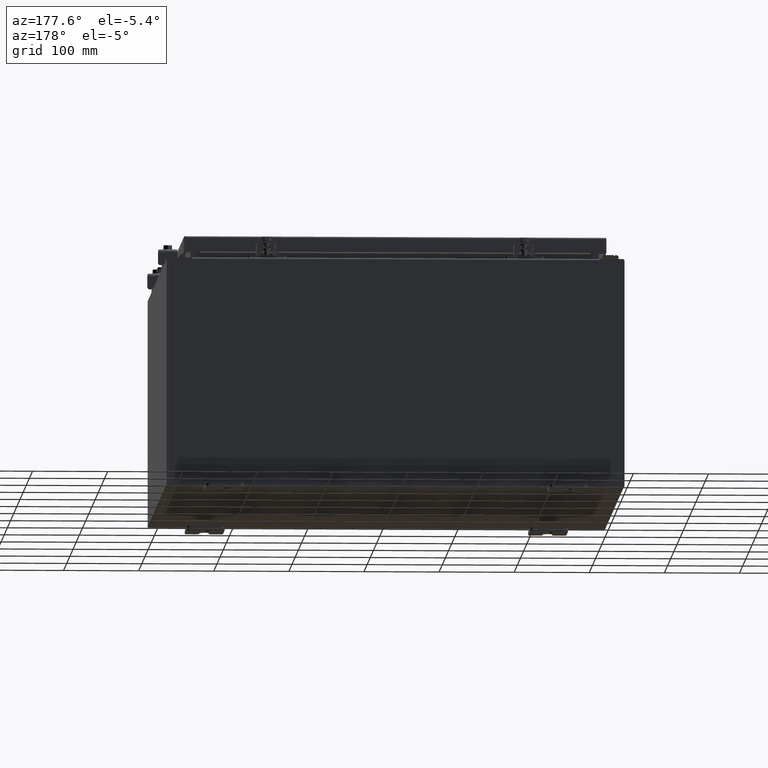
[diagram: clean part render]
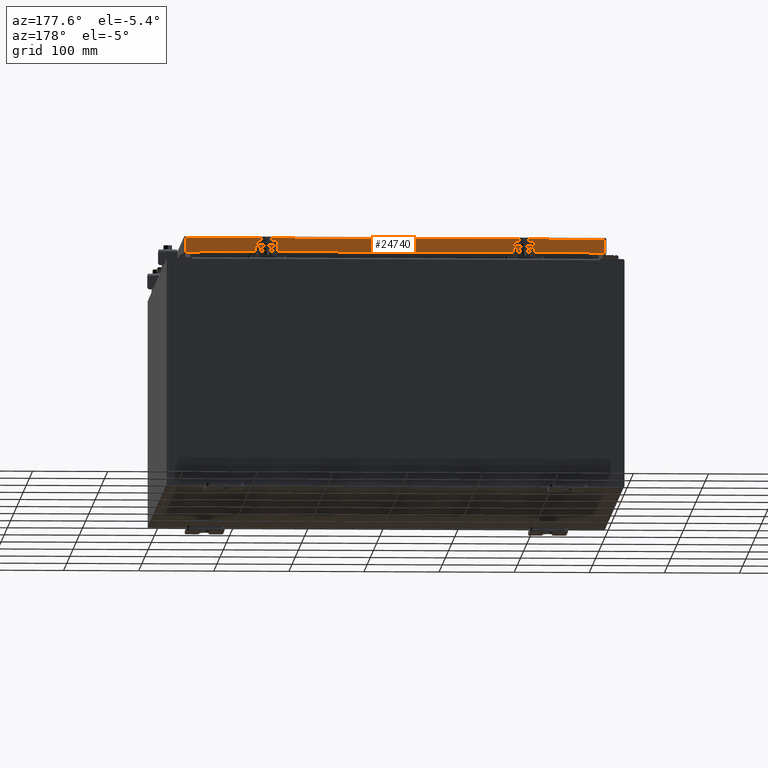
[diagram: same view with one face highlighted and labeled with its STEP entity id]
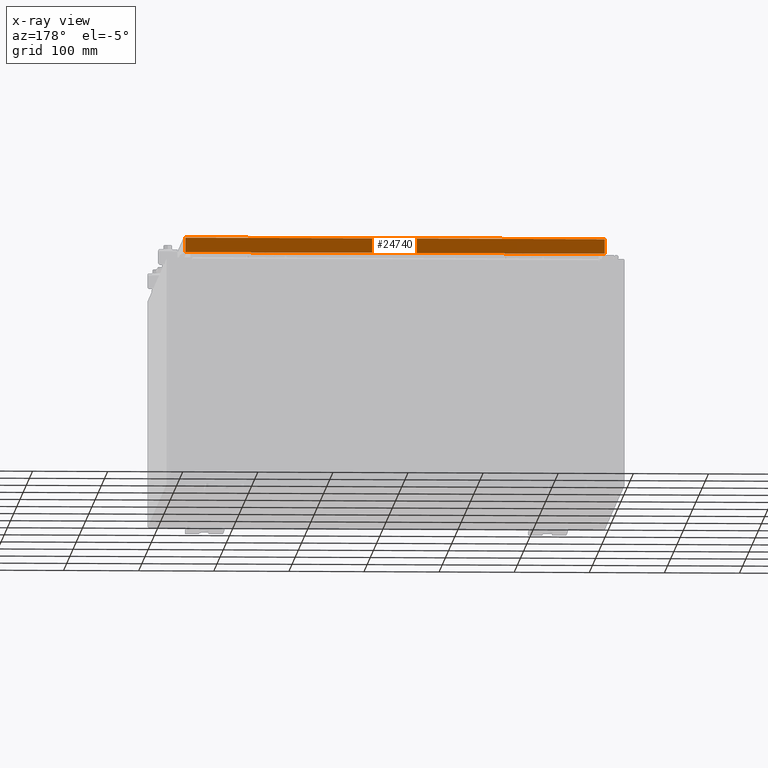
[diagram: x-ray of the same camera — body ghosted, the highlighted face saturated]
A machine part, auxiliary view. The second image highlights one B-rep face of the part: STEP entity #24740.
The next image is the same camera in x-ray: the body ghosted, the highlighted face saturated — about 0% of this face is hidden behind the body in this view.
In plain terms, the highlighted planar face has unit normal (0, -1, -0).
Its self-contained STEP definition (entity closure, byte-faithful):
#341 = EDGE_CURVE ( 'NONE', #18532, #23154, #31668, .T. ) ;
#2144 = EDGE_CURVE ( 'NONE', #23154, #26940, #20472, .T. ) ;
#2393 = DIRECTION ( 'NONE',  ( 1.000000000000000000, -4.379057701015054300E-047, 1.233005954894504400E-016 ) ) ;
#2908 = CARTESIAN_POINT ( 'NONE',  ( 10.98915786437626500, 11.09399999999999800, -0.08770000000000007000 ) ) ;
#3514 = ORIENTED_EDGE ( 'NONE', *, *, #4397, .F. ) ;
#3937 = ORIENTED_EDGE ( 'NONE', *, *, #341, .F. ) ;
#4397 = EDGE_CURVE ( 'NONE', #13661, #31395, #25884, .T. ) ;
#4878 = PLANE ( 'NONE',  #7892 ) ;
#5666 = DIRECTION ( 'NONE',  ( 1.000000000000000000, -4.379057701015054300E-047, 1.233005954894504400E-016 ) ) ;
#7690 = DIRECTION ( 'NONE',  ( 0.0000000000000000000, 2.818880942772350300E-015, -1.000000000000000000 ) ) ;
#7892 = AXIS2_PLACEMENT_3D ( 'NONE', #17435, #25034, #9954 ) ;
#8790 = CARTESIAN_POINT ( 'NONE',  ( -11.07800000000000300, 11.09399999999999800, -0.08770000000000007000 ) ) ;
#9954 = DIRECTION ( 'NONE',  ( 0.0000000000000000000, 2.818880942772350300E-015, -1.000000000000000000 ) ) ;
#10650 = CARTESIAN_POINT ( 'NONE',  ( -11.07800000000000300, 11.09399999999999900, -0.8500000000000024200 ) ) ;
#11144 = VECTOR ( 'NONE', #5666, 39.37007874015748100 ) ;
#11482 = VECTOR ( 'NONE', #21291, 39.37007874015748100 ) ;
#11577 = VERTEX_POINT ( 'NONE', #19072 ) ;
#11773 = DIRECTION ( 'NONE',  ( 1.000000000000000000, -0.0000000000000000000, -0.0000000000000000000 ) ) ;
#11783 = DIRECTION ( 'NONE',  ( -0.0000000000000000000, 2.818880942772350300E-015, -1.000000000000000000 ) ) ;
#13403 = EDGE_CURVE ( 'NONE', #31395, #11577, #17829, .T. ) ;
#13661 = VERTEX_POINT ( 'NONE', #29183 ) ;
#14283 = VECTOR ( 'NONE', #2393, 39.37007874015748100 ) ;
#14326 = CARTESIAN_POINT ( 'NONE',  ( -10.98915786437626900, 11.09399999999999800, -0.07469999999999978000 ) ) ;
#16988 = EDGE_CURVE ( 'NONE', #18532, #11577, #29267, .T. ) ;
#17435 = CARTESIAN_POINT ( 'NONE',  ( -3.855938239127258200E-030, 11.09399999999999800, 3.153347883512803100E-014 ) ) ;
#17575 = VECTOR ( 'NONE', #11773, 39.37007874015748100 ) ;
#17829 = LINE ( 'NONE', #10650, #11144 ) ;
#18532 = VERTEX_POINT ( 'NONE', #2908 ) ;
#18943 = CARTESIAN_POINT ( 'NONE',  ( -10.98915786437626900, 11.09399999999999800, -0.08770000000000007000 ) ) ;
#19030 = CARTESIAN_POINT ( 'NONE',  ( -10.98915786437626900, 11.09399999999999900, -0.8500000000000024200 ) ) ;
#19072 = CARTESIAN_POINT ( 'NONE',  ( 10.98915786437626500, 11.09399999999999900, -0.8499999999999996400 ) ) ;
#20188 = CARTESIAN_POINT ( 'NONE',  ( 10.98915786437626500, 11.09399999999999800, 3.153347883512803100E-014 ) ) ;
#20472 = LINE ( 'NONE', #14326, #32418 ) ;
#20714 = ORIENTED_EDGE ( 'NONE', *, *, #13403, .F. ) ;
#21291 = DIRECTION ( 'NONE',  ( -1.000000000000000000, -3.475696988576942200E-031, -9.473942235605600700E-046 ) ) ;
#21699 = VECTOR ( 'NONE', #7690, 39.37007874015748100 ) ;
#22266 = EDGE_LOOP ( 'NONE', ( #3937, #28288, #20714, #3514, #24276, #22684 ) ) ;
#22684 = ORIENTED_EDGE ( 'NONE', *, *, #2144, .F. ) ;
#23154 = VERTEX_POINT ( 'NONE', #18943 ) ;
#23197 = CARTESIAN_POINT ( 'NONE',  ( 10.23915786437625100, 11.09399999999999200, -0.8500000000000044200 ) ) ;
#24276 = ORIENTED_EDGE ( 'NONE', *, *, #27109, .F. ) ;
#24740 = ADVANCED_FACE ( 'NONE', ( #29883 ), #4878, .F. ) ;
#25034 = DIRECTION ( 'NONE',  ( 3.475696988576941300E-031, -1.000000000000000000, -2.818880942772350300E-015 ) ) ;
#25884 = LINE ( 'NONE', #26913, #17575 ) ;
#26913 = CARTESIAN_POINT ( 'NONE',  ( -10.23915786437626500, 11.09399999999999200, -0.8500000000000044200 ) ) ;
#26932 = LINE ( 'NONE', #30006, #14283 ) ;
#26940 = VERTEX_POINT ( 'NONE', #19030 ) ;
#27109 = EDGE_CURVE ( 'NONE', #26940, #13661, #26932, .T. ) ;
#28288 = ORIENTED_EDGE ( 'NONE', *, *, #16988, .T. ) ;
#29183 = CARTESIAN_POINT ( 'NONE',  ( -10.23915786437626700, 11.09399999999999200, -0.8500000000000044200 ) ) ;
#29267 = LINE ( 'NONE', #20188, #21699 ) ;
#29883 = FACE_OUTER_BOUND ( 'NONE', #22266, .T. ) ;
#30006 = CARTESIAN_POINT ( 'NONE',  ( -11.07800000000000300, 11.09399999999999900, -0.8500000000000024200 ) ) ;
#31395 = VERTEX_POINT ( 'NONE', #23197 ) ;
#31668 = LINE ( 'NONE', #8790, #11482 ) ;
#32418 = VECTOR ( 'NONE', #11783, 39.37007874015748100 ) ;